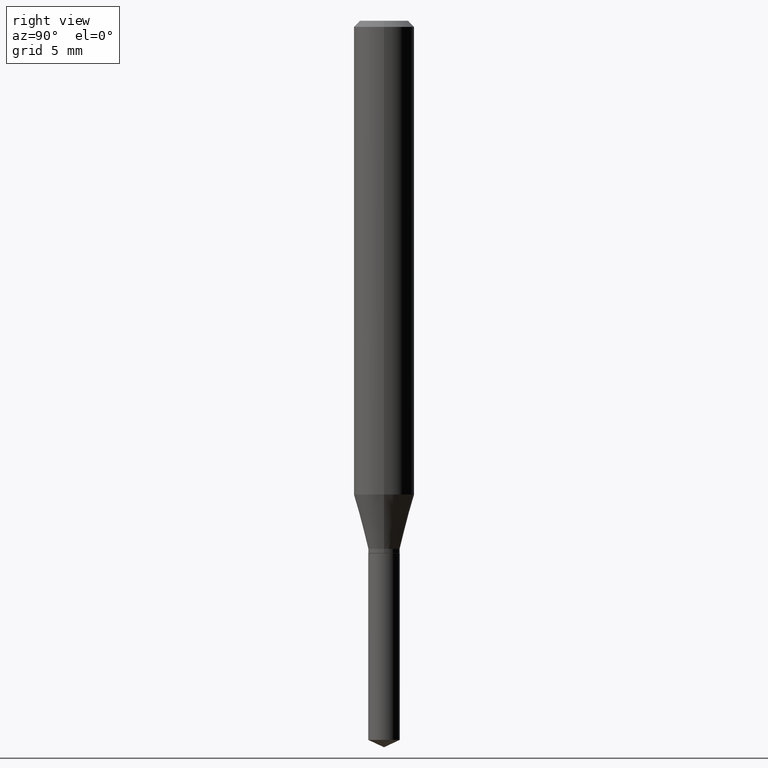
[diagram: clean part render]
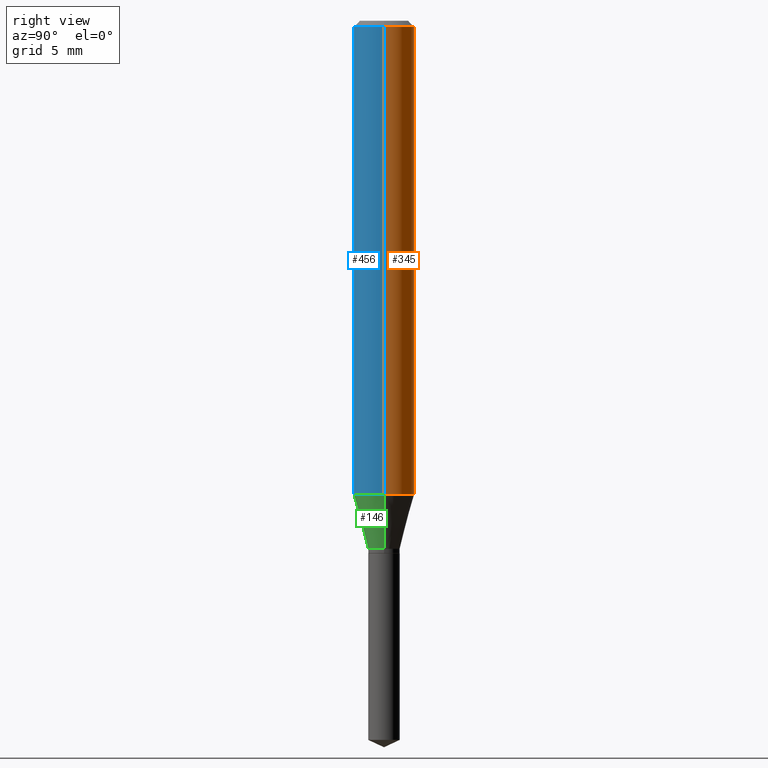
[diagram: same view with three faces highlighted in distinct colors, each labeled with its STEP entity id]
A machine part, right view with three faces highlighted in distinct colors.
Their STEP definitions:

[orange] entity #345 — the highlighted cylindrical surface (edge-blend (fillet) strip) has radius 1.5875 mm, axis along (-0, 0, 1).
#31 = ORIENTED_EDGE ( 'NONE', *, *, #326, .T. ) ;
#35 = CARTESIAN_POINT ( 'NONE',  ( 2.392251677512803216E-29, -3.415501383099560055E-15, -0.9782384757729334357 ) ) ;
#39 = CARTESIAN_POINT ( 'NONE',  ( 0.06250000000000012490, -3.851936550454952513E-15, -0.9782384757729334357 ) ) ;
#56 = CARTESIAN_POINT ( 'NONE',  ( 3.056836007731442729E-31, -4.364351673553962300E-17, -0.01250000000000008916 ) ) ;
#61 = CARTESIAN_POINT ( 'NONE',  ( 0.000000000000000000, 0.000000000000000000, 0.000000000000000000 ) ) ;
#65 = VERTEX_POINT ( 'NONE', #196 ) ;
#99 = EDGE_CURVE ( 'NONE', #333, #302, #434, .T. ) ;
#111 = DIRECTION ( 'NONE',  ( -2.445468806185136877E-29, 3.491481338843145188E-15, 1.000000000000000000 ) ) ;
#145 = CARTESIAN_POINT ( 'NONE',  ( 0.06250000000000000000, -4.800786840909313294E-16, -0.01250000000000008916 ) ) ;
#150 = LINE ( 'NONE', #303, #311 ) ;
#160 = CYLINDRICAL_SURFACE ( 'NONE', #286, 0.06250000000000005551 ) ;
#176 = AXIS2_PLACEMENT_3D ( 'NONE', #35, #488, #181 ) ;
#181 = DIRECTION ( 'NONE',  ( 1.000000000000000000, -6.982962677686264344E-15, 0.000000000000000000 ) ) ;
#186 = ORIENTED_EDGE ( 'NONE', *, *, #479, .F. ) ;
#196 = CARTESIAN_POINT ( 'NONE',  ( -0.06250000000000012490, -2.971412173249496256E-15, -0.9782384757729334357 ) ) ;
#203 = FACE_OUTER_BOUND ( 'NONE', #224, .T. ) ;
#204 = VECTOR ( 'NONE', #343, 39.37007874015748143 ) ;
#224 = EDGE_LOOP ( 'NONE', ( #446, #31, #186, #281 ) ) ;
#232 = CARTESIAN_POINT ( 'NONE',  ( -0.06250000000000000000, -1.285483240067486009E-15, -0.01250000000000008916 ) ) ;
#245 = DIRECTION ( 'NONE',  ( 1.000000000000000000, -6.982962677686267499E-15, 4.876176775795936353E-29 ) ) ;
#252 = VERTEX_POINT ( 'NONE', #232 ) ;
#257 = CIRCLE ( 'NONE', #176, 0.06250000000000012490 ) ;
#281 = ORIENTED_EDGE ( 'NONE', *, *, #99, .F. ) ;
#286 = AXIS2_PLACEMENT_3D ( 'NONE', #61, #469, #245 ) ;
#289 = EDGE_CURVE ( 'NONE', #333, #65, #257, .T. ) ;
#302 = VERTEX_POINT ( 'NONE', #145 ) ;
#303 = CARTESIAN_POINT ( 'NONE',  ( -0.06250000000000005551, 4.440892098500630106E-16, -3.074334431409318916E-30 ) ) ;
#311 = VECTOR ( 'NONE', #111, 39.37007874015748143 ) ;
#326 = EDGE_CURVE ( 'NONE', #65, #252, #150, .T. ) ;
#333 = VERTEX_POINT ( 'NONE', #39 ) ;
#343 = DIRECTION ( 'NONE',  ( -2.445468806185136877E-29, 3.491481338843145188E-15, 1.000000000000000000 ) ) ;
#345 = ADVANCED_FACE ( 'NONE', ( #203 ), #160, .T. ) ;
#348 = CIRCLE ( 'NONE', #364, 0.06250000000000000000 ) ;
#364 = AXIS2_PLACEMENT_3D ( 'NONE', #56, #476, #385 ) ;
#382 = CARTESIAN_POINT ( 'NONE',  ( 0.06250000000000005551, -4.364351673553921131E-16, 3.047610484872463023E-30 ) ) ;
#385 = DIRECTION ( 'NONE',  ( 1.000000000000000000, -6.982962677686266711E-15, 0.000000000000000000 ) ) ;
#434 = LINE ( 'NONE', #382, #204 ) ;
#446 = ORIENTED_EDGE ( 'NONE', *, *, #289, .T. ) ;
#469 = DIRECTION ( 'NONE',  ( -2.445468806185136597E-29, 3.491481338843145583E-15, 1.000000000000000000 ) ) ;
#476 = DIRECTION ( 'NONE',  ( -2.445468806185136597E-29, 3.491481338843145583E-15, 1.000000000000000000 ) ) ;
#479 = EDGE_CURVE ( 'NONE', #302, #252, #348, .T. ) ;
#488 = DIRECTION ( 'NONE',  ( -2.445468806185136597E-29, 3.491481338843145583E-15, 1.000000000000000000 ) ) ;

[blue] entity #456 — the highlighted cylindrical surface (edge-blend (fillet) strip) has radius 1.5875 mm, axis along (-0, 0, 1).
#17 = DIRECTION ( 'NONE',  ( -2.445468806185136597E-29, 3.491481338843145583E-15, 1.000000000000000000 ) ) ;
#38 = ORIENTED_EDGE ( 'NONE', *, *, #283, .T. ) ;
#39 = CARTESIAN_POINT ( 'NONE',  ( 0.06250000000000012490, -3.851936550454952513E-15, -0.9782384757729334357 ) ) ;
#65 = VERTEX_POINT ( 'NONE', #196 ) ;
#79 = EDGE_LOOP ( 'NONE', ( #95, #38, #142, #436 ) ) ;
#90 = DIRECTION ( 'NONE',  ( 1.000000000000000000, -6.982962677686266711E-15, 0.000000000000000000 ) ) ;
#95 = ORIENTED_EDGE ( 'NONE', *, *, #326, .F. ) ;
#99 = EDGE_CURVE ( 'NONE', #333, #302, #434, .T. ) ;
#104 = AXIS2_PLACEMENT_3D ( 'NONE', #435, #323, #90 ) ;
#111 = DIRECTION ( 'NONE',  ( -2.445468806185136877E-29, 3.491481338843145188E-15, 1.000000000000000000 ) ) ;
#119 = CIRCLE ( 'NONE', #478, 0.06250000000000012490 ) ;
#142 = ORIENTED_EDGE ( 'NONE', *, *, #99, .T. ) ;
#145 = CARTESIAN_POINT ( 'NONE',  ( 0.06250000000000000000, -4.800786840909313294E-16, -0.01250000000000008916 ) ) ;
#150 = LINE ( 'NONE', #303, #311 ) ;
#166 = DIRECTION ( 'NONE',  ( 1.000000000000000000, -6.982962677686267499E-15, 4.876176775795936353E-29 ) ) ;
#170 = FACE_OUTER_BOUND ( 'NONE', #79, .T. ) ;
#195 = AXIS2_PLACEMENT_3D ( 'NONE', #357, #17, #166 ) ;
#196 = CARTESIAN_POINT ( 'NONE',  ( -0.06250000000000012490, -2.971412173249496256E-15, -0.9782384757729334357 ) ) ;
#204 = VECTOR ( 'NONE', #343, 39.37007874015748143 ) ;
#220 = CARTESIAN_POINT ( 'NONE',  ( 2.392251677512803216E-29, -3.415501383099560055E-15, -0.9782384757729334357 ) ) ;
#232 = CARTESIAN_POINT ( 'NONE',  ( -0.06250000000000000000, -1.285483240067486009E-15, -0.01250000000000008916 ) ) ;
#252 = VERTEX_POINT ( 'NONE', #232 ) ;
#283 = EDGE_CURVE ( 'NONE', #65, #333, #119, .T. ) ;
#285 = CYLINDRICAL_SURFACE ( 'NONE', #195, 0.06250000000000005551 ) ;
#302 = VERTEX_POINT ( 'NONE', #145 ) ;
#303 = CARTESIAN_POINT ( 'NONE',  ( -0.06250000000000005551, 4.440892098500630106E-16, -3.074334431409318916E-30 ) ) ;
#306 = DIRECTION ( 'NONE',  ( 1.000000000000000000, -6.982962677686264344E-15, 0.000000000000000000 ) ) ;
#311 = VECTOR ( 'NONE', #111, 39.37007874015748143 ) ;
#323 = DIRECTION ( 'NONE',  ( -2.445468806185136597E-29, 3.491481338843145583E-15, 1.000000000000000000 ) ) ;
#326 = EDGE_CURVE ( 'NONE', #65, #252, #150, .T. ) ;
#329 = CIRCLE ( 'NONE', #104, 0.06250000000000000000 ) ;
#333 = VERTEX_POINT ( 'NONE', #39 ) ;
#343 = DIRECTION ( 'NONE',  ( -2.445468806185136877E-29, 3.491481338843145188E-15, 1.000000000000000000 ) ) ;
#357 = CARTESIAN_POINT ( 'NONE',  ( 0.000000000000000000, 0.000000000000000000, 0.000000000000000000 ) ) ;
#369 = DIRECTION ( 'NONE',  ( -2.445468806185136597E-29, 3.491481338843145583E-15, 1.000000000000000000 ) ) ;
#382 = CARTESIAN_POINT ( 'NONE',  ( 0.06250000000000005551, -4.364351673553921131E-16, 3.047610484872463023E-30 ) ) ;
#391 = EDGE_CURVE ( 'NONE', #252, #302, #329, .T. ) ;
#434 = LINE ( 'NONE', #382, #204 ) ;
#435 = CARTESIAN_POINT ( 'NONE',  ( 3.056836007731442729E-31, -4.364351673553962300E-17, -0.01250000000000008916 ) ) ;
#436 = ORIENTED_EDGE ( 'NONE', *, *, #391, .F. ) ;
#456 = ADVANCED_FACE ( 'NONE', ( #170 ), #285, .T. ) ;
#478 = AXIS2_PLACEMENT_3D ( 'NONE', #220, #369, #306 ) ;

[green] entity #146 — the highlighted conical surface has half-angle 15 deg.
#2 = CARTESIAN_POINT ( 'NONE',  ( 0.03250000000000000111, -4.033359242631601195E-15, -1.090200000000000058 ) ) ;
#6 = CIRCLE ( 'NONE', #360, 0.03250000000000000111 ) ;
#8 = AXIS2_PLACEMENT_3D ( 'NONE', #13, #122, #273 ) ;
#13 = CARTESIAN_POINT ( 'NONE',  ( 2.666050092503035832E-29, -3.806412955606797054E-15, -1.090200000000000058 ) ) ;
#14 = CARTESIAN_POINT ( 'NONE',  ( 2.666050092503035832E-29, -3.806412955606797054E-15, -1.090200000000000058 ) ) ;
#39 = CARTESIAN_POINT ( 'NONE',  ( 0.06250000000000012490, -3.851936550454952513E-15, -0.9782384757729334357 ) ) ;
#51 = CARTESIAN_POINT ( 'NONE',  ( 0.03250000000000000111, -4.033359242631601195E-15, -1.090200000000000058 ) ) ;
#65 = VERTEX_POINT ( 'NONE', #196 ) ;
#66 = VECTOR ( 'NONE', #474, 39.37007874015748854 ) ;
#72 = ORIENTED_EDGE ( 'NONE', *, *, #406, .T. ) ;
#93 = DIRECTION ( 'NONE',  ( 1.000000000000000000, -6.982962677686273810E-15, 0.000000000000000000 ) ) ;
#100 = VERTEX_POINT ( 'NONE', #2 ) ;
#118 = DIRECTION ( 'NONE',  ( -0.2588190451025211836, 5.211531920934547886E-15, 0.9659258262890679791 ) ) ;
#119 = CIRCLE ( 'NONE', #478, 0.06250000000000012490 ) ;
#122 = DIRECTION ( 'NONE',  ( -2.445468806185136597E-29, 3.491481338843145583E-15, 1.000000000000000000 ) ) ;
#146 = ADVANCED_FACE ( 'NONE', ( #199 ), #399, .T. ) ;
#183 = ORIENTED_EDGE ( 'NONE', *, *, #283, .F. ) ;
#196 = CARTESIAN_POINT ( 'NONE',  ( -0.06250000000000012490, -2.971412173249496256E-15, -0.9782384757729334357 ) ) ;
#199 = FACE_OUTER_BOUND ( 'NONE', #371, .T. ) ;
#207 = EDGE_CURVE ( 'NONE', #483, #65, #422, .T. ) ;
#213 = ORIENTED_EDGE ( 'NONE', *, *, #430, .T. ) ;
#220 = CARTESIAN_POINT ( 'NONE',  ( 2.392251677512803216E-29, -3.415501383099560055E-15, -0.9782384757729334357 ) ) ;
#223 = CARTESIAN_POINT ( 'NONE',  ( -0.03250000000000000111, -3.575486566484764683E-15, -1.090200000000000058 ) ) ;
#259 = ORIENTED_EDGE ( 'NONE', *, *, #207, .F. ) ;
#273 = DIRECTION ( 'NONE',  ( 1.000000000000000000, -6.982962677686273810E-15, 0.000000000000000000 ) ) ;
#283 = EDGE_CURVE ( 'NONE', #65, #333, #119, .T. ) ;
#306 = DIRECTION ( 'NONE',  ( 1.000000000000000000, -6.982962677686264344E-15, 0.000000000000000000 ) ) ;
#318 = DIRECTION ( 'NONE',  ( -2.445468806185136597E-29, 3.491481338843145583E-15, 1.000000000000000000 ) ) ;
#324 = CARTESIAN_POINT ( 'NONE',  ( -0.03250000000000000111, -3.591721954710385060E-15, -1.090200000000000058 ) ) ;
#333 = VERTEX_POINT ( 'NONE', #39 ) ;
#360 = AXIS2_PLACEMENT_3D ( 'NONE', #14, #318, #93 ) ;
#361 = VECTOR ( 'NONE', #118, 39.37007874015748854 ) ;
#369 = DIRECTION ( 'NONE',  ( -2.445468806185136597E-29, 3.491481338843145583E-15, 1.000000000000000000 ) ) ;
#371 = EDGE_LOOP ( 'NONE', ( #259, #213, #72, #183 ) ) ;
#390 = LINE ( 'NONE', #51, #66 ) ;
#399 = CONICAL_SURFACE ( 'NONE', #8, 0.03250000000000000111, 0.2617993877991499074 ) ;
#406 = EDGE_CURVE ( 'NONE', #100, #333, #390, .T. ) ;
#422 = LINE ( 'NONE', #223, #361 ) ;
#430 = EDGE_CURVE ( 'NONE', #483, #100, #6, .T. ) ;
#474 = DIRECTION ( 'NONE',  ( 0.2588190451025211836, 1.565188264969622559E-15, 0.9659258262890679791 ) ) ;
#478 = AXIS2_PLACEMENT_3D ( 'NONE', #220, #369, #306 ) ;
#483 = VERTEX_POINT ( 'NONE', #324 ) ;